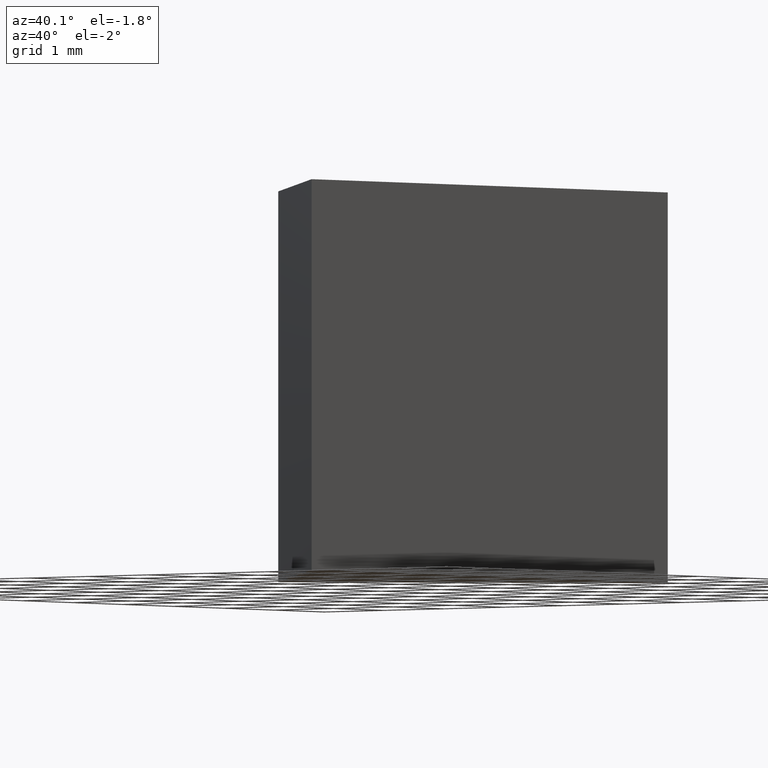
[diagram: clean part render]
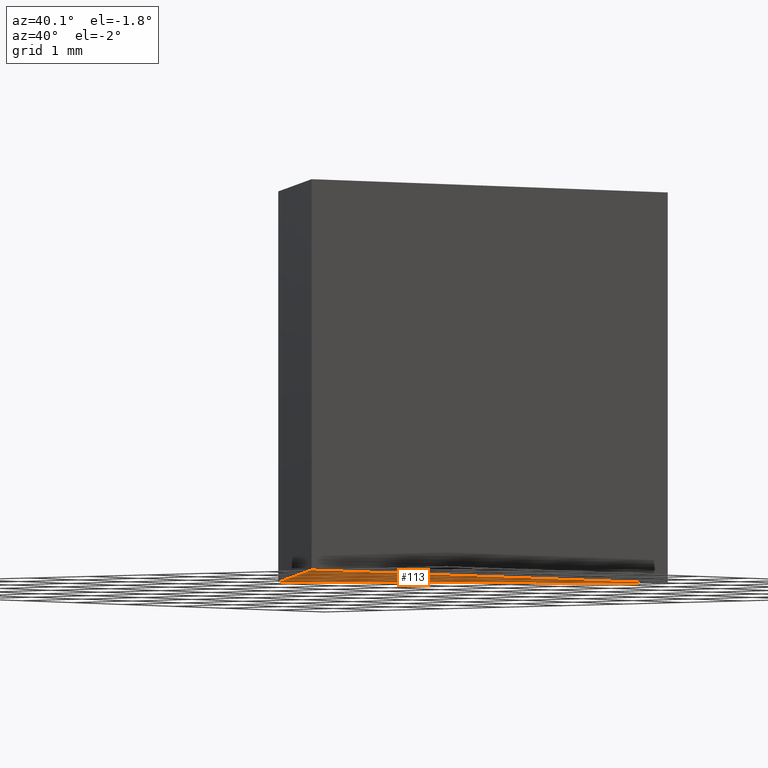
[diagram: same view with one face highlighted and labeled with its STEP entity id]
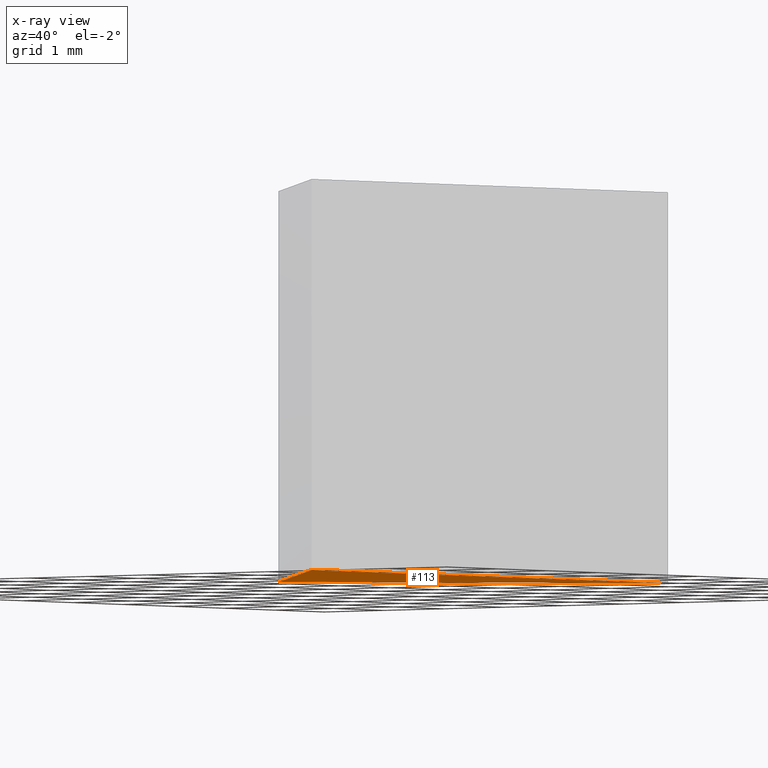
[diagram: x-ray of the same camera — body ghosted, the highlighted face saturated]
A machine part, auxiliary view. The second image highlights one B-rep face of the part: STEP entity #113.
The next image is the same camera in x-ray: the body ghosted, the highlighted face saturated — about 0% of this face is hidden behind the body in this view.
In plain terms, the highlighted planar face has unit normal (-0, 0, 1).
Its self-contained STEP definition (entity closure, byte-faithful):
#3 = VECTOR ( 'NONE', #142, 999.9999999999998900 ) ;
#4 = VERTEX_POINT ( 'NONE', #12 ) ;
#10 = CARTESIAN_POINT ( 'NONE',  ( 59.01220385852765600, 10.24015864690132300, 0.0000000000000000000 ) ) ;
#12 = CARTESIAN_POINT ( 'NONE',  ( 59.01220385852767000, 17.31122645876679700, 0.0000000000000000000 ) ) ;
#13 = VERTEX_POINT ( 'NONE', #61 ) ;
#20 = LINE ( 'NONE', #160, #133 ) ;
#61 = CARTESIAN_POINT ( 'NONE',  ( 55.47666995259492500, 13.77569255283406200, 0.0000000000000000000 ) ) ;
#69 = DIRECTION ( 'NONE',  ( 0.7071067811865468000, -0.7071067811865483500, 0.0000000000000000000 ) ) ;
#85 = FACE_OUTER_BOUND ( 'NONE', #108, .T. ) ;
#89 = ORIENTED_EDGE ( 'NONE', *, *, #136, .F. ) ;
#95 = VECTOR ( 'NONE', #127, 1000.000000000000000 ) ;
#108 = EDGE_LOOP ( 'NONE', ( #122, #117, #89 ) ) ;
#110 = CARTESIAN_POINT ( 'NONE',  ( 59.01220385852765600, 10.24015864690132300, 0.0000000000000000000 ) ) ;
#113 = ADVANCED_FACE ( 'NONE', ( #85 ), #165, .F. ) ;
#117 = ORIENTED_EDGE ( 'NONE', *, *, #123, .F. ) ;
#119 = CARTESIAN_POINT ( 'NONE',  ( 0.0000000000000000000, 0.0000000000000000000, 0.0000000000000000000 ) ) ;
#122 = ORIENTED_EDGE ( 'NONE', *, *, #124, .F. ) ;
#123 = EDGE_CURVE ( 'NONE', #4, #13, #167, .T. ) ;
#124 = EDGE_CURVE ( 'NONE', #13, #135, #20, .T. ) ;
#127 = DIRECTION ( 'NONE',  ( 1.962615573354719300E-015, 1.000000000000000000, 0.0000000000000000000 ) ) ;
#129 = DIRECTION ( 'NONE',  ( -0.0000000000000000000, 0.0000000000000000000, 1.000000000000000000 ) ) ;
#133 = VECTOR ( 'NONE', #69, 999.9999999999998900 ) ;
#135 = VERTEX_POINT ( 'NONE', #10 ) ;
#136 = EDGE_CURVE ( 'NONE', #135, #4, #138, .T. ) ;
#138 = LINE ( 'NONE', #110, #95 ) ;
#142 = DIRECTION ( 'NONE',  ( -0.7071067811865486800, -0.7071067811865464600, -0.0000000000000000000 ) ) ;
#143 = DIRECTION ( 'NONE',  ( 1.000000000000000000, 0.0000000000000000000, 0.0000000000000000000 ) ) ;
#154 = AXIS2_PLACEMENT_3D ( 'NONE', #119, #129, #143 ) ;
#160 = CARTESIAN_POINT ( 'NONE',  ( 55.47666995259492500, 13.77569255283406200, 0.0000000000000000000 ) ) ;
#161 = CARTESIAN_POINT ( 'NONE',  ( 55.47666995259492500, 13.77569255283406200, 0.0000000000000000000 ) ) ;
#165 = PLANE ( 'NONE',  #154 ) ;
#167 = LINE ( 'NONE', #161, #3 ) ;